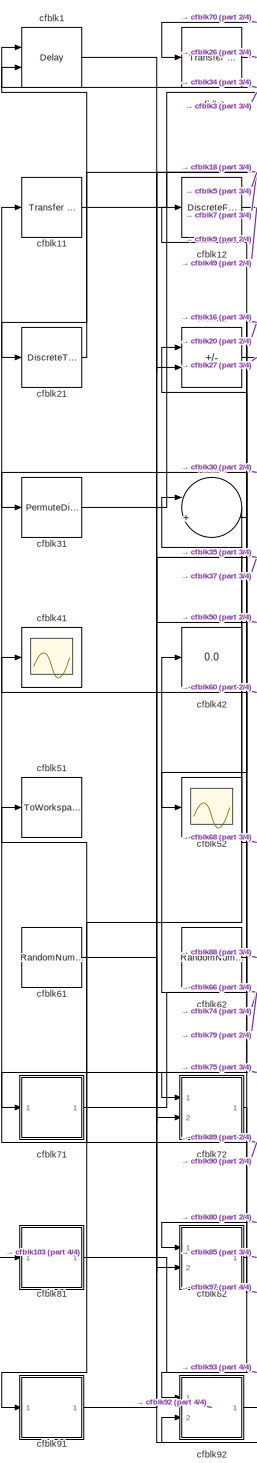
[diagram: root canvas - part 1/4, left side, full height]
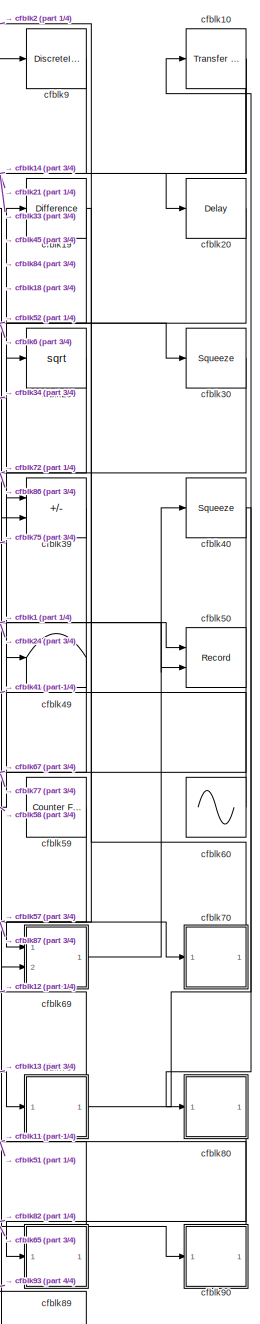
[diagram: root canvas - part 2/4, right side, full height]
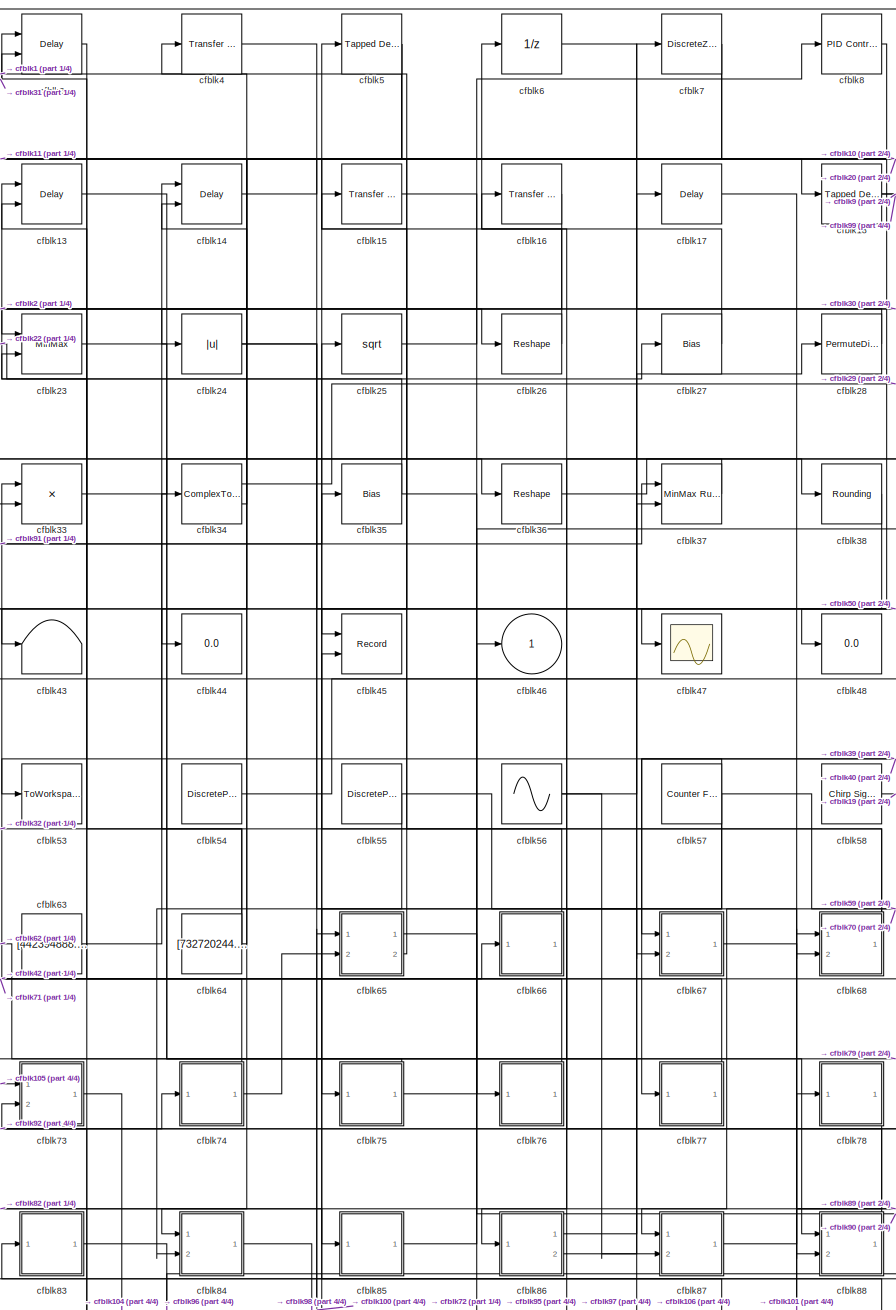
[diagram: root canvas - part 3/4, center side, full height]
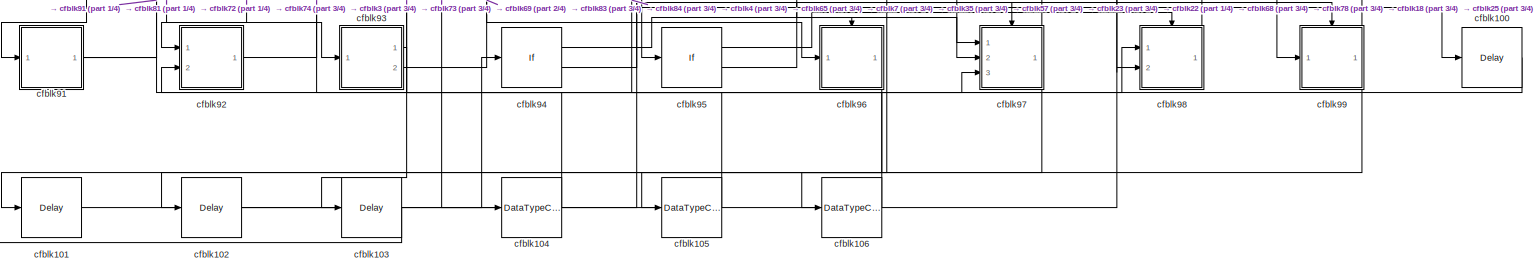
[diagram: root canvas - part 4/4, full width, bottom band]
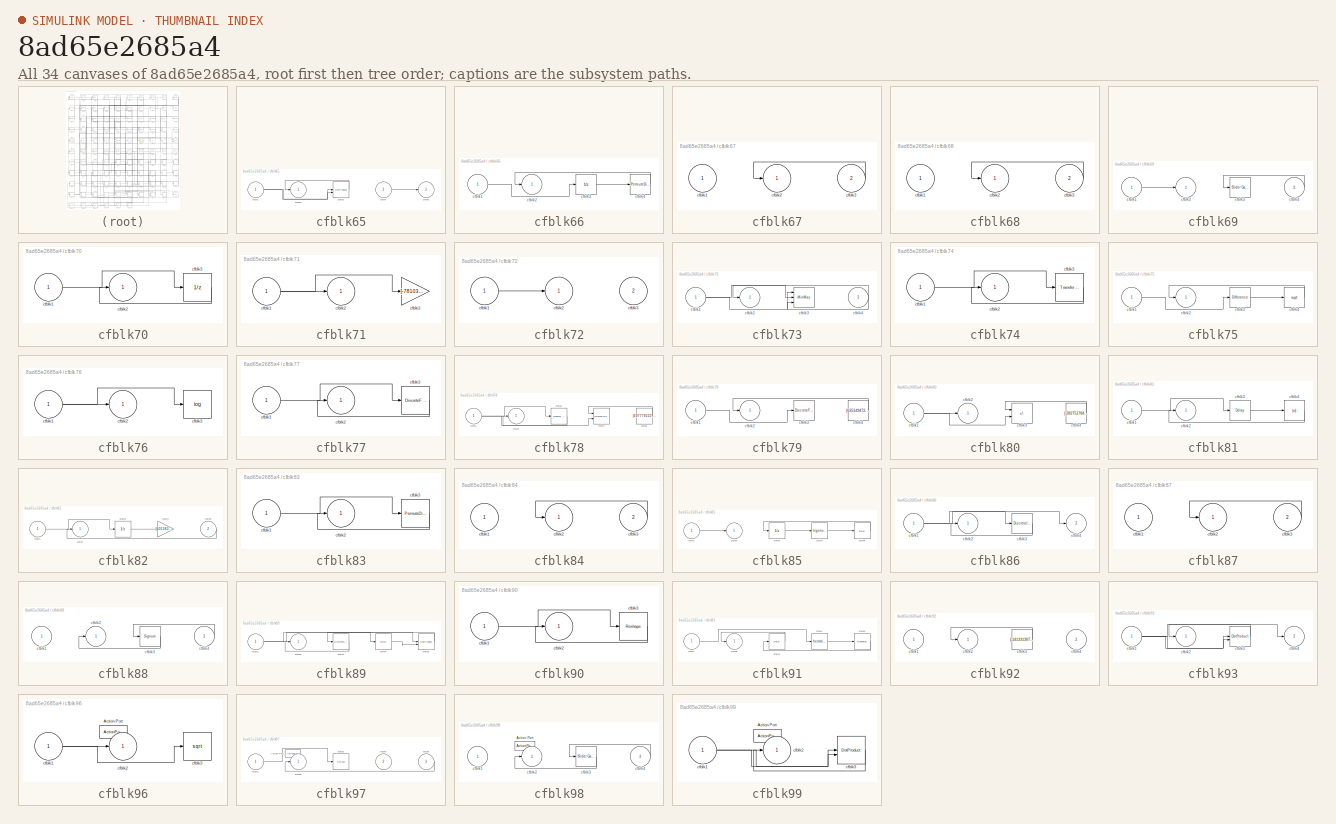
[diagram: thumbnail index - all 34 canvases of the model, root first then tree order]
MODEL slx_8ad65e2685a4
KIND model
CONFIG AbsTol = auto
CONFIG EnableMultiTasking = off
CONFIG FixedStep = auto
CONFIG MaxStep = auto
CONFIG MinStep = auto
CONFIG RelTol = 1e-3
CONFIG SampleTimeConstraint = Unconstrained
CONFIG SolverName = VariableStepAuto
CONFIG StartTime = 0.0
CONFIG StopTime = 10.0
BLOCK [Delay] cfblk1
  DelayLengthSource = Input port
  InputPortMap = u0,p1
  Ports = [2, 1]
  SampleTime = 1
BLOCK [Reference] cfblk10  REF=simulink/Discrete/Transfer Fcn
Lead or Lag
  Ports = [1, 1]
  SourceBlock = simulink/Discrete/Transfer Fcn\nLead or Lag
  SourceProductBaseCode = SL
  SourceType = Lead or Lag Compensator
BLOCK [Delay] cfblk100
  InputPortMap = u0
  Ports = [1, 1]
  SampleTime = 1
BLOCK [Delay] cfblk101
  InputPortMap = u0
  Ports = [1, 1]
  SampleTime = 1
BLOCK [Delay] cfblk102
  InputPortMap = u0
  Ports = [1, 1]
  SampleTime = 1
BLOCK [Delay] cfblk103
  InputPortMap = u0
  Ports = [1, 1]
  SampleTime = 1
BLOCK [DataTypeConversion] cfblk104
  RndMeth = Floor
  SaturateOnIntegerOverflow = off
BLOCK [DataTypeConversion] cfblk105
  RndMeth = Floor
  SaturateOnIntegerOverflow = off
BLOCK [DataTypeConversion] cfblk106
  RndMeth = Floor
  SaturateOnIntegerOverflow = off
BLOCK [Reference] cfblk11  REF=simulink/Discrete/Transfer Fcn
First Order
  Ports = [1, 1]
  SourceBlock = simulink/Discrete/Transfer Fcn\nFirst Order
  SourceProductBaseCode = SL
  SourceType = First Order Transfer Fcn
BLOCK [DiscreteFir] cfblk12
  InputPortMap = u0
  OutputPortMap = o0
  Ports = [1, 1]
  SampleTime = 1
BLOCK [Delay] cfblk13
  DelayLengthSource = Input port
  InputPortMap = u0,p1
  Ports = [2, 1]
  SampleTime = 1
BLOCK [Delay] cfblk14
  DelayLengthSource = Input port
  InputPortMap = u0,p1
  Ports = [2, 1]
  SampleTime = 1
BLOCK [Reference] cfblk15  REF=simulink/Discrete/Transfer Fcn
Real Zero
  Ports = [1, 1]
  SourceBlock = simulink/Discrete/Transfer Fcn\nReal Zero
  SourceProductBaseCode = SL
  SourceType = Transfer Fcn Real Zero
BLOCK [Reference] cfblk16  REF=simulink/Discrete/Transfer Fcn
Real Zero
  Ports = [1, 1]
  SourceBlock = simulink/Discrete/Transfer Fcn\nReal Zero
  SourceProductBaseCode = SL
  SourceType = Transfer Fcn Real Zero
BLOCK [Delay] cfblk17
  InputPortMap = u0
  Ports = [1, 1]
  SampleTime = 1
BLOCK [Reference] cfblk18  REF=simulink/Discrete/Tapped Delay
  Ports = [1, 1]
  SourceBlock = simulink/Discrete/Tapped Delay
  SourceProductBaseCode = SL
  SourceType = Tapped Delay Line
BLOCK [Reference] cfblk19  REF=simulink/Discrete/Difference
  Ports = [1, 1]
  SourceBlock = simulink/Discrete/Difference
  SourceProductBaseCode = SL
  SourceType = Difference
BLOCK [Reference] cfblk2  REF=simulink/Discrete/Transfer Fcn
Lead or Lag
  Ports = [1, 1]
  SourceBlock = simulink/Discrete/Transfer Fcn\nLead or Lag
  SourceProductBaseCode = SL
  SourceType = Lead or Lag Compensator
BLOCK [Delay] cfblk20
  InputPortMap = u0
  Ports = [1, 1]
  SampleTime = 1
BLOCK [DiscreteTransferFcn] cfblk21
  InputPortMap = u0
  Ports = [1, 1]
  SampleTime = 1
BLOCK [Sum] cfblk22
  IconShape = rectangular
  Inputs = +-
  Ports = [2, 1]
BLOCK [MinMax] cfblk23
  Function = max
  Inputs = 2
  Ports = [2, 1]
BLOCK [Abs] cfblk24
  SaturateOnIntegerOverflow = off
BLOCK [Sqrt] cfblk25
BLOCK [Reshape] cfblk26
  Ports = [1, 1]
BLOCK [Bias] cfblk27
  Bias = [-797960593.743857]
  SaturateOnIntegerOverflow = off
BLOCK [PermuteDimensions] cfblk28
BLOCK [Sqrt] cfblk29
BLOCK [Delay] cfblk3
  InputPortMap = u0,e6
  Ports = [2, 1]
  SampleTime = 1
  ShowEnablePort = on
BLOCK [Squeeze] cfblk30
BLOCK [PermuteDimensions] cfblk31
BLOCK [Sum] cfblk32
  Inputs = |++
  Ports = [2, 1]
BLOCK [Product] cfblk33
  Inputs = **
  Ports = [2, 1]
BLOCK [ComplexToMagnitudeAngle] cfblk34
  Ports = [1, 2]
BLOCK [Bias] cfblk35
  Bias = [619983336.282363]
  SaturateOnIntegerOverflow = off
BLOCK [Reshape] cfblk36
  Ports = [1, 1]
BLOCK [Reference] cfblk37  REF=simulink/Math
Operations/MinMax
Running
Resettable
  Ports = [2, 1]
  SourceBlock = simulink/Math\nOperations/MinMax\nRunning\nResettable
  SourceProductBaseCode = SL
  SourceType = MinMax Running Resettable
BLOCK [Rounding] cfblk38
BLOCK [Sum] cfblk39
  IconShape = rectangular
  Inputs = --
  Ports = [2, 1]
BLOCK [Reference] cfblk4  REF=simulink/Discrete/Transfer Fcn
Real Zero
  Ports = [1, 1]
  SourceBlock = simulink/Discrete/Transfer Fcn\nReal Zero
  SourceProductBaseCode = SL
  SourceType = Transfer Fcn Real Zero
BLOCK [Squeeze] cfblk40
BLOCK [Scope] cfblk41
  Floating = off
  NumInputPorts = 1
  Ports = [1]
BLOCK [Display] cfblk42
  Decimation = 1
  Ports = [1]
BLOCK [Terminator] cfblk43
BLOCK [Display] cfblk44
  Decimation = 1
  Ports = [1]
BLOCK [Record] cfblk45
  CompatibilityTag = XY
  FileSettingsInternal = {"entries":[{"content":{"excelSettings":{"content":{},"type":"Streamout.ExcelSettings"}},"type":"Streamout.FileSettingStorage","uuid":"aea9327c-655b-48bd-a78c-8c98bb394b7e"}],"packageUris":["http://schema.mathworks.com/mf0/streamout_blocks/R2020a"],"version":"1.0"}
  Layout = [1 1]
  Ports = [2]
  SignalsInternal = {"entries":[{"content":{"signals":[{"content":{"blockPath":["sampleModel161/cfblk45"],"channel":[],"dimensions":[1],"domain":"sampleModel161/cfblk45","lineColor":"#a2142f","plots":[1],"port":1,"sid":[""],"signalID":6094,"signalName":"cfblk10"},"type":"RecordBlkView.Signal","uuid":"d1a2102a-b012-4f36-9f7c-29bbfcbaf4f0"},{"content":{"blockPath":["sampleModel161/cfblk45"],"channel":[],"dimensions":[1...<+383ch>
  VisualizationBindings = {"xyplotplugin":{"info":[{"series":[{"bindingParametersList":[{"parameter":"X-Axis","signalID":6094,"signalName":"cfblk10"},{"parameter":"Y-Axis","signalID":6100,"signalName":"cfblk68"}],"seriesID":50617}],"subplotID":1}]}}
BLOCK [Outport] cfblk46
BLOCK [Scope] cfblk47
  Floating = off
  NumInputPorts = 1
  Ports = [1]
BLOCK [Display] cfblk48
  Decimation = 1
  Ports = [1]
BLOCK [Terminator] cfblk49
BLOCK [Reference] cfblk5  REF=simulink/Discrete/Tapped Delay
  Ports = [1, 1]
  SourceBlock = simulink/Discrete/Tapped Delay
  SourceProductBaseCode = SL
  SourceType = Tapped Delay Line
BLOCK [Record] cfblk50
  CompatibilityTag = XY
  FileSettingsInternal = {"entries":[{"content":{"excelSettings":{"content":{},"type":"Streamout.ExcelSettings"}},"type":"Streamout.FileSettingStorage","uuid":"217729ac-a3b3-492b-8907-d0a7c10fa8f5"}],"packageUris":["http://schema.mathworks.com/mf0/streamout_blocks/R2020a"],"version":"1.0"}
  Layout = [1 1]
  Ports = [2]
  SignalsInternal = {"entries":[{"content":{"signals":[{"content":{"blockPath":["sampleModel161/cfblk50"],"channel":[],"dimensions":[1],"domain":"sampleModel161/cfblk50","lineColor":"#a2142f","plots":[1],"port":1,"sid":[""],"signalID":6104,"signalName":"cfblk1"},"type":"RecordBlkView.Signal","uuid":"d3e4b2a0-8b34-436e-97c2-dbcffd0622e8"},{"content":{"blockPath":["sampleModel161/cfblk50"],"channel":[],"dimensions":[1]...<+382ch>
  VisualizationBindings = {"xyplotplugin":{"info":[{"series":[{"bindingParametersList":[{"parameter":"X-Axis","signalID":6104,"signalName":"cfblk1"},{"parameter":"Y-Axis","signalID":6108,"signalName":"cfblk24"}],"seriesID":40753}],"subplotID":1}]}}
BLOCK [ToWorkspace] cfblk51
  FixptAsFi = on
  MaxDataPoints = inf
  Ports = [1]
  SampleTime = -1
  SaveFormat = Timeseries
  VariableName = ihyligr
BLOCK [Scope] cfblk52
  Floating = off
  NumInputPorts = 1
  Ports = [1]
BLOCK [ToWorkspace] cfblk53
  FixptAsFi = on
  MaxDataPoints = inf
  Ports = [1]
  SampleTime = -1
  SaveFormat = Timeseries
  VariableName = vjyriat
BLOCK [DiscretePulseGenerator] cfblk54
  Amplitude = [902121356.280096]
  Period = [53508103.241336]
  PhaseDelay = [9.000000]
  Ports = [0, 1]
  PulseType = Time based
  PulseWidth = 5
BLOCK [DiscretePulseGenerator] cfblk55
  Amplitude = [269668819.301766]
  Period = [58775580.792966]
  PhaseDelay = [5.000000]
  Ports = [0, 1]
  PulseType = Time based
  PulseWidth = 5
BLOCK [Sin] cfblk56
  Amplitude = [-709093241.756912]
  Bias = [-149963615.888180]
  Ports = [0, 1]
  SampleTime = 0
BLOCK [Reference] cfblk57  REF=simulink/Sources/Counter
Free-Running
  Ports = [0, 1]
  SourceBlock = simulink/Sources/Counter\nFree-Running
  SourceProductBaseCode = SL
  SourceType = Counter Free-Running
BLOCK [Reference] cfblk58  REF=simulink/Sources/Chirp Signal
  Ports = [0, 1]
  SourceBlock = simulink/Sources/Chirp Signal
  SourceProductBaseCode = SL
  SourceType = chirp
BLOCK [Reference] cfblk59  REF=simulink/Sources/Counter
Free-Running
  Ports = [0, 1]
  SourceBlock = simulink/Sources/Counter\nFree-Running
  SourceProductBaseCode = SL
  SourceType = Counter Free-Running
BLOCK [UnitDelay] cfblk6
  HasFrameUpgradeWarning = on
BLOCK [Sin] cfblk60
  Amplitude = [665714232.719712]
  Bias = [-960226317.803523]
  Ports = [0, 1]
  SampleTime = 0
BLOCK [RandomNumber] cfblk61
  Mean = [-57210.883663]
  SampleTime = 0.1
  Seed = [517220069.000000]
  Variance = [49850.840022]
BLOCK [RandomNumber] cfblk62
  Mean = [62654.103054]
  SampleTime = 0.1
  Seed = [86968229.000000]
  Variance = [86318.692322]
BLOCK [Constant] cfblk63
  SampleTime = 1
  Value = [442394888.661629]
BLOCK [Constant] cfblk64
  SampleTime = 1
  Value = [732720244.975016]
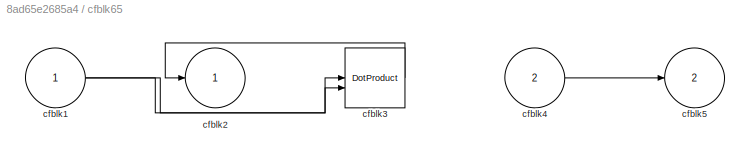
BLOCK [SubSystem] cfblk65
  Ports = [2, 2]
  RequestExecContextInheritance = off
BLOCK [Inport] cfblk65/cfblk1
BLOCK [Outport] cfblk65/cfblk2
BLOCK [DotProduct] cfblk65/cfblk3
  OutDataTypeStr = Inherit: Inherit via internal rule
BLOCK [Inport] cfblk65/cfblk4
  Port = 2
BLOCK [Outport] cfblk65/cfblk5
  Port = 2
BLOCK [SubSystem] cfblk66
  Ports = [1, 1]
  RequestExecContextInheritance = off
BLOCK [Inport] cfblk66/cfblk1
BLOCK [Outport] cfblk66/cfblk2
BLOCK [UnitDelay] cfblk66/cfblk3
  HasFrameUpgradeWarning = on
BLOCK [PermuteDimensions] cfblk66/cfblk4
BLOCK [SubSystem] cfblk67
  Ports = [2, 1]
  RequestExecContextInheritance = off
BLOCK [Inport] cfblk67/cfblk1
BLOCK [Outport] cfblk67/cfblk2
BLOCK [Inport] cfblk67/cfblk3
  Port = 2
BLOCK [SubSystem] cfblk68
  Ports = [2, 1]
  RequestExecContextInheritance = off
BLOCK [Inport] cfblk68/cfblk1
BLOCK [Outport] cfblk68/cfblk2
BLOCK [Inport] cfblk68/cfblk3
  Port = 2
BLOCK [SubSystem] cfblk69
  Ports = [2, 1]
  RequestExecContextInheritance = off
BLOCK [Inport] cfblk69/cfblk1
BLOCK [Outport] cfblk69/cfblk2
BLOCK [Reference] cfblk69/cfblk3  REF=simulink/Math
Operations/Slider
Gain
  Ports = [1, 1]
  SourceBlock = simulink/Math\nOperations/Slider\nGain
  SourceProductBaseCode = SL
  SourceType = Slider Gain
BLOCK [Inport] cfblk69/cfblk4
  Port = 2
BLOCK [DiscreteZeroPole] cfblk7
  Gain = 1
  Poles = [0 0.5]
BLOCK [SubSystem] cfblk70
  Ports = [1, 1]
  RequestExecContextInheritance = off
BLOCK [Inport] cfblk70/cfblk1
BLOCK [Outport] cfblk70/cfblk2
BLOCK [UnitDelay] cfblk70/cfblk3
  HasFrameUpgradeWarning = on
BLOCK [SubSystem] cfblk71
  Ports = [1, 1]
  RequestExecContextInheritance = off
BLOCK [Inport] cfblk71/cfblk1
BLOCK [Outport] cfblk71/cfblk2
BLOCK [Gain] cfblk71/cfblk3
  Gain = [-781035660.055184]
BLOCK [SubSystem] cfblk72
  Ports = [2, 1]
  RequestExecContextInheritance = off
BLOCK [Inport] cfblk72/cfblk1
BLOCK [Outport] cfblk72/cfblk2
BLOCK [Inport] cfblk72/cfblk3
  Port = 2
BLOCK [SubSystem] cfblk73
  Ports = [2, 1]
  RequestExecContextInheritance = off
BLOCK [Inport] cfblk73/cfblk1
BLOCK [Outport] cfblk73/cfblk2
BLOCK [MinMax] cfblk73/cfblk3
  Function = max
  Inputs = 3
  Ports = [3, 1]
BLOCK [Inport] cfblk73/cfblk4
  Port = 2
BLOCK [SubSystem] cfblk74
  Ports = [1, 1]
  RequestExecContextInheritance = off
BLOCK [Inport] cfblk74/cfblk1
BLOCK [Outport] cfblk74/cfblk2
BLOCK [Reference] cfblk74/cfblk3  REF=simulink/Discrete/Transfer Fcn
Lead or Lag
  Ports = [1, 1]
  SourceBlock = simulink/Discrete/Transfer Fcn\nLead or Lag
  SourceProductBaseCode = SL
  SourceType = Lead or Lag Compensator
BLOCK [SubSystem] cfblk75
  Ports = [1, 1]
  RequestExecContextInheritance = off
BLOCK [Inport] cfblk75/cfblk1
BLOCK [Outport] cfblk75/cfblk2
BLOCK [Reference] cfblk75/cfblk3  REF=simulink/Discrete/Difference
  Ports = [1, 1]
  SourceBlock = simulink/Discrete/Difference
  SourceProductBaseCode = SL
  SourceType = Difference
BLOCK [Sqrt] cfblk75/cfblk4
BLOCK [SubSystem] cfblk76
  Ports = [1, 1]
  RequestExecContextInheritance = off
BLOCK [Inport] cfblk76/cfblk1
BLOCK [Outport] cfblk76/cfblk2
BLOCK [Math] cfblk76/cfblk3
  Operator = log
  Ports = [1, 1]
BLOCK [SubSystem] cfblk77
  Ports = [1, 1]
  RequestExecContextInheritance = off
BLOCK [Inport] cfblk77/cfblk1
BLOCK [Outport] cfblk77/cfblk2
BLOCK [DiscreteFilter] cfblk77/cfblk3
  InputPortMap = u0
  Ports = [1, 1]
  SampleTime = 1
BLOCK [SubSystem] cfblk78
  Ports = [1, 1]
  RequestExecContextInheritance = off
BLOCK [Inport] cfblk78/cfblk1
BLOCK [Outport] cfblk78/cfblk2
BLOCK [Reference] cfblk78/cfblk3  REF=simulink/Discrete/Transfer Fcn
First Order
  Ports = [1, 1]
  SourceBlock = simulink/Discrete/Transfer Fcn\nFirst Order
  SourceProductBaseCode = SL
  SourceType = First Order Transfer Fcn
BLOCK [Reference] cfblk78/cfblk4  REF=simulink/Math
Operations/MinMax
Running
Resettable
  Ports = [2, 1]
  SourceBlock = simulink/Math\nOperations/MinMax\nRunning\nResettable
  SourceProductBaseCode = SL
  SourceType = MinMax Running Resettable
BLOCK [Constant] cfblk78/cfblk5
  SampleTime = 1
  Value = [497779222.058779]
BLOCK [SubSystem] cfblk79
  Ports = [1, 1]
  RequestExecContextInheritance = off
BLOCK [Inport] cfblk79/cfblk1
BLOCK [Outport] cfblk79/cfblk2
BLOCK [DiscreteFir] cfblk79/cfblk3
  InputPortMap = u0
  OutputPortMap = o0
  Ports = [1, 1]
  SampleTime = 1
BLOCK [Constant] cfblk79/cfblk4
  SampleTime = 1
  Value = [635149472.487827]
BLOCK [Reference] cfblk8  REF=slpidlib/PID Controller
  Ports = [1, 1]
  SourceBlock = slpidlib/PID Controller
  SourceProductBaseCode = SL
  SourceType = PID 1dof
BLOCK [SubSystem] cfblk80
  Ports = [1, 1]
  RequestExecContextInheritance = off
BLOCK [Inport] cfblk80/cfblk1
BLOCK [Outport] cfblk80/cfblk2
BLOCK [Sum] cfblk80/cfblk3
  IconShape = rectangular
  Inputs = --
  Ports = [2, 1]
BLOCK [Constant] cfblk80/cfblk4
  SampleTime = 1
  Value = [-282751784.938534]
BLOCK [SubSystem] cfblk81
  Ports = [1, 1]
  RequestExecContextInheritance = off
BLOCK [Inport] cfblk81/cfblk1
BLOCK [Outport] cfblk81/cfblk2
BLOCK [Delay] cfblk81/cfblk3
  InputPortMap = u0
  Ports = [1, 1]
  SampleTime = 1
BLOCK [Abs] cfblk81/cfblk4
  SaturateOnIntegerOverflow = off
BLOCK [SubSystem] cfblk82
  Ports = [2, 1]
  RequestExecContextInheritance = off
BLOCK [Inport] cfblk82/cfblk1
BLOCK [Outport] cfblk82/cfblk2
BLOCK [UnitDelay] cfblk82/cfblk3
  HasFrameUpgradeWarning = on
BLOCK [Gain] cfblk82/cfblk4
  Gain = [401363216.392434]
BLOCK [Inport] cfblk82/cfblk5
  Port = 2
BLOCK [SubSystem] cfblk83
  Ports = [1, 1]
  RequestExecContextInheritance = off
BLOCK [Inport] cfblk83/cfblk1
BLOCK [Outport] cfblk83/cfblk2
BLOCK [PermuteDimensions] cfblk83/cfblk3
BLOCK [SubSystem] cfblk84
  Ports = [2, 1]
  RequestExecContextInheritance = off
BLOCK [Inport] cfblk84/cfblk1
BLOCK [Outport] cfblk84/cfblk2
BLOCK [Inport] cfblk84/cfblk3
  Port = 2
BLOCK [SubSystem] cfblk85
  Ports = [1, 1]
  RequestExecContextInheritance = off
BLOCK [Inport] cfblk85/cfblk1
BLOCK [Outport] cfblk85/cfblk2
BLOCK [UnitDelay] cfblk85/cfblk3
  HasFrameUpgradeWarning = on
BLOCK [Trigonometry] cfblk85/cfblk4
  Ports = [1, 1]
BLOCK [Delay] cfblk85/cfblk5
  InputPortMap = u0
  Ports = [1, 1]
  SampleTime = 1
BLOCK [SubSystem] cfblk86
  Ports = [1, 2]
  RequestExecContextInheritance = off
BLOCK [Inport] cfblk86/cfblk1
BLOCK [Outport] cfblk86/cfblk2
BLOCK [DiscreteIntegrator] cfblk86/cfblk3
  ICPrevOutput = DiscIntNeverNeededParam
  ICPrevScaledInput = DiscIntNeverNeededParam
  InitialConditionSetting = Auto
  Ports = [1, 1]
BLOCK [Outport] cfblk86/cfblk4
  Port = 2
BLOCK [SubSystem] cfblk87
  Ports = [2, 1]
  RequestExecContextInheritance = off
BLOCK [Inport] cfblk87/cfblk1
BLOCK [Outport] cfblk87/cfblk2
BLOCK [Inport] cfblk87/cfblk3
  Port = 2
BLOCK [SubSystem] cfblk88
  Ports = [2, 1]
  RequestExecContextInheritance = off
BLOCK [Inport] cfblk88/cfblk1
BLOCK [Outport] cfblk88/cfblk2
BLOCK [Signum] cfblk88/cfblk3
BLOCK [Inport] cfblk88/cfblk4
  Port = 2
BLOCK [SubSystem] cfblk89
  Ports = [1, 1]
  RequestExecContextInheritance = off
BLOCK [Inport] cfblk89/cfblk1
BLOCK [Outport] cfblk89/cfblk2
BLOCK [DiscreteStateSpace] cfblk89/cfblk3
BLOCK [Delay] cfblk89/cfblk4
  InputPortMap = u0
  Ports = [1, 1]
  SampleTime = 1
BLOCK [DotProduct] cfblk89/cfblk5
  OutDataTypeStr = Inherit: Inherit via internal rule
BLOCK [DiscreteIntegrator] cfblk9
  ICPrevOutput = DiscIntNeverNeededParam
  ICPrevScaledInput = DiscIntNeverNeededParam
  InitialConditionSetting = Auto
  Ports = [1, 1]
BLOCK [SubSystem] cfblk90
  Ports = [1, 1]
  RequestExecContextInheritance = off
BLOCK [Inport] cfblk90/cfblk1
BLOCK [Outport] cfblk90/cfblk2
BLOCK [Reshape] cfblk90/cfblk3
  Ports = [1, 1]
BLOCK [SubSystem] cfblk91
  Ports = [1, 1]
  RequestExecContextInheritance = off
BLOCK [Inport] cfblk91/cfblk1
BLOCK [Outport] cfblk91/cfblk2
BLOCK [Delay] cfblk91/cfblk3
  InputPortMap = u0
  Ports = [1, 1]
  SampleTime = 1
BLOCK [Math] cfblk91/cfblk4
  Operator = hermitian
  Ports = [1, 1]
BLOCK [Rounding] cfblk91/cfblk5
BLOCK [SubSystem] cfblk92
  Ports = [2, 1]
  RequestExecContextInheritance = off
BLOCK [Inport] cfblk92/cfblk1
BLOCK [Outport] cfblk92/cfblk2
BLOCK [Constant] cfblk92/cfblk3
  SampleTime = 1
  Value = [-141331307.999933]
BLOCK [Inport] cfblk92/cfblk4
  Port = 2
BLOCK [SubSystem] cfblk93
  Ports = [1, 2]
  RequestExecContextInheritance = off
BLOCK [Inport] cfblk93/cfblk1
BLOCK [Outport] cfblk93/cfblk2
BLOCK [DotProduct] cfblk93/cfblk3
  OutDataTypeStr = Inherit: Inherit via internal rule
BLOCK [Outport] cfblk93/cfblk4
  Port = 2
BLOCK [If] cfblk94
  IfExpression = u1 >= 0
  Ports = [1, 2]
  SampleTime = 1
BLOCK [If] cfblk95
  IfExpression = u1 >= 0
  Ports = [1, 2]
  SampleTime = 1
BLOCK [SubSystem] cfblk96
  Ports = [1, 1, 0, 0, 0, 0, 0, 1]
  RequestExecContextInheritance = off
  TreatAsAtomicUnit = on
BLOCK [ActionPort] cfblk96/Action Port
  ActionPortLabel = if(u1 >= 0)
BLOCK [Inport] cfblk96/cfblk1
BLOCK [Outport] cfblk96/cfblk2
BLOCK [Sqrt] cfblk96/cfblk3
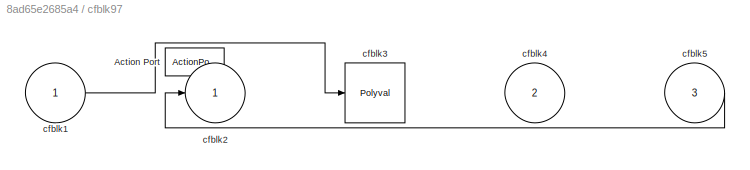
BLOCK [SubSystem] cfblk97
  Ports = [3, 1, 0, 0, 0, 0, 0, 1]
  RequestExecContextInheritance = off
  TreatAsAtomicUnit = on
BLOCK [ActionPort] cfblk97/Action Port
  ActionPortLabel = else
BLOCK [Inport] cfblk97/cfblk1
BLOCK [Outport] cfblk97/cfblk2
BLOCK [Polyval] cfblk97/cfblk3
  Coefs = [ +2.081618890e-019, -1.441693666e-014, +4.719686976e-010, -8.536869453e-006, +1.621573104e-001, -8.087801117e+001 ]
BLOCK [Inport] cfblk97/cfblk4
  Port = 2
BLOCK [Inport] cfblk97/cfblk5
  Port = 3
BLOCK [SubSystem] cfblk98
  Ports = [2, 1, 0, 0, 0, 0, 0, 1]
  RequestExecContextInheritance = off
  TreatAsAtomicUnit = on
BLOCK [ActionPort] cfblk98/Action Port
  ActionPortLabel = if(u1 >= 0)
BLOCK [Inport] cfblk98/cfblk1
BLOCK [Outport] cfblk98/cfblk2
BLOCK [Reference] cfblk98/cfblk3  REF=simulink/Math
Operations/Slider
Gain
  Ports = [1, 1]
  SourceBlock = simulink/Math\nOperations/Slider\nGain
  SourceProductBaseCode = SL
  SourceType = Slider Gain
BLOCK [Inport] cfblk98/cfblk4
  Port = 2
BLOCK [SubSystem] cfblk99
  Ports = [1, 1, 0, 0, 0, 0, 0, 1]
  RequestExecContextInheritance = off
  TreatAsAtomicUnit = on
BLOCK [ActionPort] cfblk99/Action Port
  ActionPortLabel = else
BLOCK [Inport] cfblk99/cfblk1
BLOCK [Outport] cfblk99/cfblk2
BLOCK [DotProduct] cfblk99/cfblk3
  OutDataTypeStr = Inherit: Inherit via internal rule
LINE cfblk100:1 -> cfblk92:2
LINE cfblk101:1 -> cfblk68:1
LINE cfblk102:1 -> cfblk94:1
LINE cfblk103:1 -> cfblk81:1
NET cfblk104:1 -> cfblk3:2, cfblk65:1
LINE cfblk105:1 -> cfblk73:1
LINE cfblk106:1 -> cfblk73:2
NET cfblk10:1 -> cfblk33:2, cfblk45:1, cfblk84:1
LINE cfblk11:1 -> cfblk18:1
LINE cfblk12:1 -> cfblk49:1
LINE cfblk13:1 -> cfblk79:1
LINE cfblk14:1 -> cfblk20:1
LINE cfblk15:1 -> cfblk76:1
LINE cfblk16:1 -> cfblk32:2
LINE cfblk17:1 -> cfblk88:2
NET cfblk18:1 -> cfblk99:1, cfblk9:1
NET cfblk19:1 -> cfblk39:2, cfblk69:1
LINE cfblk1:1 -> cfblk50:1
LINE cfblk20:1 -> cfblk52:1
LINE cfblk21:1 -> cfblk1:1
LINE cfblk22:1 -> cfblk27:1
LINE cfblk23:1 -> cfblk97:1
NET cfblk24:1 -> cfblk50:2, cfblk68:2
LINE cfblk25:1 -> cfblk8:1
LINE cfblk26:1 -> cfblk5:1
LINE cfblk27:1 -> cfblk6:1
LINE cfblk28:1 -> cfblk23:1
LINE cfblk29:1 -> cfblk86:1
LINE cfblk2:1 -> cfblk26:1
LINE cfblk30:1 -> cfblk72:1
LINE cfblk31:1 -> cfblk3:1
LINE cfblk32:1 -> cfblk91:1
LINE cfblk33:1 -> cfblk36:1
LINE cfblk34:1 -> cfblk29:1
LINE cfblk34:2 -> cfblk1:2
NET cfblk35:1 -> cfblk13:1, cfblk97:2
LINE cfblk36:1 -> cfblk38:1
LINE cfblk37:1 -> cfblk31:1
LINE cfblk38:1 -> cfblk47:1
LINE cfblk39:1 -> cfblk77:1
LINE cfblk3:1 -> cfblk43:1
NET cfblk40:1 -> cfblk67:1, cfblk80:1
LINE cfblk4:1 -> cfblk100:1
LINE cfblk54:1 -> cfblk17:1
NET cfblk55:1 -> cfblk67:2, cfblk75:1
NET cfblk56:1 -> cfblk37:2, cfblk87:2
NET cfblk57:1 -> cfblk106:1, cfblk53:1, cfblk70:1, cfblk84:2
LINE cfblk58:1 -> cfblk19:1
LINE cfblk59:1 -> cfblk87:1
NET cfblk5:1 -> cfblk22:2, cfblk24:1, cfblk44:1
LINE cfblk60:1 -> cfblk41:1
LINE cfblk61:1 -> cfblk82:2
LINE cfblk62:1 -> cfblk88:1
LINE cfblk63:1 -> cfblk14:1
NET cfblk64:1 -> cfblk14:2, cfblk23:2, cfblk34:1
NET cfblk65/cfblk1:1 -> cfblk65/cfblk3:1, cfblk65/cfblk3:2
LINE cfblk65/cfblk3:1 -> cfblk65/cfblk2:1
LINE cfblk65/cfblk4:1 -> cfblk65/cfblk5:1
LINE cfblk65:1 -> cfblk90:1
LINE cfblk65:2 -> cfblk4:1
LINE cfblk66/cfblk1:1 -> cfblk66/cfblk3:1
LINE cfblk66/cfblk3:1 -> cfblk66/cfblk4:1
LINE cfblk66/cfblk4:1 -> cfblk66/cfblk2:1
LINE cfblk66:1 -> cfblk15:1
LINE cfblk67/cfblk3:1 -> cfblk67/cfblk2:1
LINE cfblk67:1 -> cfblk89:1
LINE cfblk68/cfblk3:1 -> cfblk68/cfblk2:1
NET cfblk68:1 -> cfblk32:1, cfblk45:2
LINE cfblk69/cfblk1:1 -> cfblk69/cfblk2:1
LINE cfblk69/cfblk4:1 -> cfblk69/cfblk3:1
LINE cfblk69:1 -> cfblk40:1
LINE cfblk6:1 -> cfblk30:1
LINE cfblk70/cfblk1:1 -> cfblk70/cfblk3:1
LINE cfblk70/cfblk3:1 -> cfblk70/cfblk2:1
LINE cfblk70:1 -> cfblk2:1
NET cfblk71/cfblk1:1 -> cfblk71/cfblk2:1, cfblk71/cfblk3:1
LINE cfblk71:1 -> cfblk66:1
LINE cfblk72/cfblk1:1 -> cfblk72/cfblk2:1
LINE cfblk72:1 -> cfblk92:1
NET cfblk73/cfblk1:1 -> cfblk73/cfblk3:1, cfblk73/cfblk3:2
NET cfblk73/cfblk4:1 -> cfblk73/cfblk2:1, cfblk73/cfblk3:3
LINE cfblk73:1 -> cfblk104:1
LINE cfblk74/cfblk1:1 -> cfblk74/cfblk3:1
LINE cfblk74/cfblk3:1 -> cfblk74/cfblk2:1
NET cfblk74:1 -> cfblk42:1, cfblk65:2
LINE cfblk75/cfblk1:1 -> cfblk75/cfblk3:1
LINE cfblk75/cfblk3:1 -> cfblk75/cfblk4:1
LINE cfblk75/cfblk4:1 -> cfblk75/cfblk2:1
NET cfblk75:1 -> cfblk39:1, cfblk71:1
NET cfblk76/cfblk1:1 -> cfblk76/cfblk2:1, cfblk76/cfblk3:1
LINE cfblk76:1 -> cfblk33:1
LINE cfblk77/cfblk1:1 -> cfblk77/cfblk3:1
LINE cfblk77/cfblk3:1 -> cfblk77/cfblk2:1
LINE cfblk77:1 -> cfblk13:2
NET cfblk78/cfblk1:1 -> cfblk78/cfblk3:1, cfblk78/cfblk4:2
LINE cfblk78/cfblk3:1 -> cfblk78/cfblk2:1
LINE cfblk78/cfblk5:1 -> cfblk78/cfblk4:1
LINE cfblk78:1 -> cfblk98:2
LINE cfblk79/cfblk1:1 -> cfblk79/cfblk3:1
LINE cfblk79/cfblk4:1 -> cfblk79/cfblk2:1
NET cfblk79:1 -> cfblk10:1, cfblk12:1
NET cfblk7:1 -> cfblk72:2, cfblk95:1
NET cfblk80/cfblk1:1 -> cfblk80/cfblk2:1, cfblk80/cfblk3:2
LINE cfblk80/cfblk4:1 -> cfblk80/cfblk3:1
LINE cfblk80:1 -> cfblk82:1
LINE cfblk81/cfblk1:1 -> cfblk81/cfblk3:1
LINE cfblk81/cfblk3:1 -> cfblk81/cfblk4:1
LINE cfblk81/cfblk4:1 -> cfblk81/cfblk2:1
LINE cfblk81:1 -> cfblk93:1
LINE cfblk82/cfblk1:1 -> cfblk82/cfblk3:1
LINE cfblk82/cfblk3:1 -> cfblk82/cfblk4:1
LINE cfblk82/cfblk5:1 -> cfblk82/cfblk2:1
LINE cfblk82:1 -> cfblk85:1
LINE cfblk83/cfblk1:1 -> cfblk83/cfblk3:1
LINE cfblk83/cfblk3:1 -> cfblk83/cfblk2:1
LINE cfblk83:1 -> cfblk96:1
LINE cfblk84/cfblk3:1 -> cfblk84/cfblk2:1
LINE cfblk84:1 -> cfblk98:1
LINE cfblk85/cfblk1:1 -> cfblk85/cfblk2:1
LINE cfblk85/cfblk3:1 -> cfblk85/cfblk4:1
LINE cfblk85/cfblk4:1 -> cfblk85/cfblk5:1
LINE cfblk85/cfblk5:1 -> cfblk85/cfblk3:1
LINE cfblk85:1 -> cfblk46:1
NET cfblk86/cfblk1:1 -> cfblk86/cfblk3:1, cfblk86/cfblk4:1
LINE cfblk86/cfblk3:1 -> cfblk86/cfblk2:1
LINE cfblk86:1 -> cfblk7:1
LINE cfblk86:2 -> cfblk28:1
LINE cfblk87/cfblk3:1 -> cfblk87/cfblk2:1
LINE cfblk87:1 -> cfblk78:1
LINE cfblk88/cfblk3:1 -> cfblk88/cfblk2:1
LINE cfblk88/cfblk4:1 -> cfblk88/cfblk3:1
LINE cfblk88:1 -> cfblk16:1
NET cfblk89/cfblk1:1 -> cfblk89/cfblk4:1, cfblk89/cfblk5:1
LINE cfblk89/cfblk3:1 -> cfblk89/cfblk2:1
LINE cfblk89/cfblk4:1 -> cfblk89/cfblk5:2
LINE cfblk89/cfblk5:1 -> cfblk89/cfblk3:1
LINE cfblk89:1 -> cfblk11:1
LINE cfblk8:1 -> cfblk48:1
LINE cfblk90/cfblk1:1 -> cfblk90/cfblk3:1
LINE cfblk90/cfblk3:1 -> cfblk90/cfblk2:1
LINE cfblk90:1 -> cfblk51:1
LINE cfblk91/cfblk1:1 -> cfblk91/cfblk4:1
LINE cfblk91/cfblk3:1 -> cfblk91/cfblk2:1
LINE cfblk91/cfblk4:1 -> cfblk91/cfblk5:1
LINE cfblk91/cfblk5:1 -> cfblk91/cfblk3:1
NET cfblk91:1 -> cfblk35:1, cfblk37:1, cfblk97:3
LINE cfblk92/cfblk3:1 -> cfblk92/cfblk2:1
LINE cfblk92:1 -> cfblk74:1
NET cfblk93/cfblk1:1 -> cfblk93/cfblk3:1, cfblk93/cfblk3:2, cfblk93/cfblk4:1
LINE cfblk93/cfblk3:1 -> cfblk93/cfblk2:1
LINE cfblk93:1 -> cfblk103:1
LINE cfblk93:2 -> cfblk69:2
LINE cfblk94:1 -> cfblk96:ifaction
LINE cfblk94:2 -> cfblk97:ifaction
LINE cfblk95:1 -> cfblk98:ifaction
LINE cfblk95:2 -> cfblk99:ifaction
NET cfblk96/cfblk1:1 -> cfblk96/cfblk2:1, cfblk96/cfblk3:1
LINE cfblk96:1 -> cfblk101:1
LINE cfblk97/cfblk1:1 -> cfblk97/cfblk3:1
LINE cfblk97/cfblk5:1 -> cfblk97/cfblk2:1
NET cfblk97:1 -> cfblk102:1, cfblk22:1
LINE cfblk98/cfblk3:1 -> cfblk98/cfblk2:1
LINE cfblk98/cfblk4:1 -> cfblk98/cfblk3:1
LINE cfblk98:1 -> cfblk83:1
NET cfblk99/cfblk1:1 -> cfblk99/cfblk3:1, cfblk99/cfblk3:2
LINE cfblk99/cfblk3:1 -> cfblk99/cfblk2:1
NET cfblk99:1 -> cfblk105:1, cfblk25:1
LINE cfblk9:1 -> cfblk21:1
note: NET lines group one-source signal fan-out (src -> all destinations, sorted); 1:1 wires keep LINE
